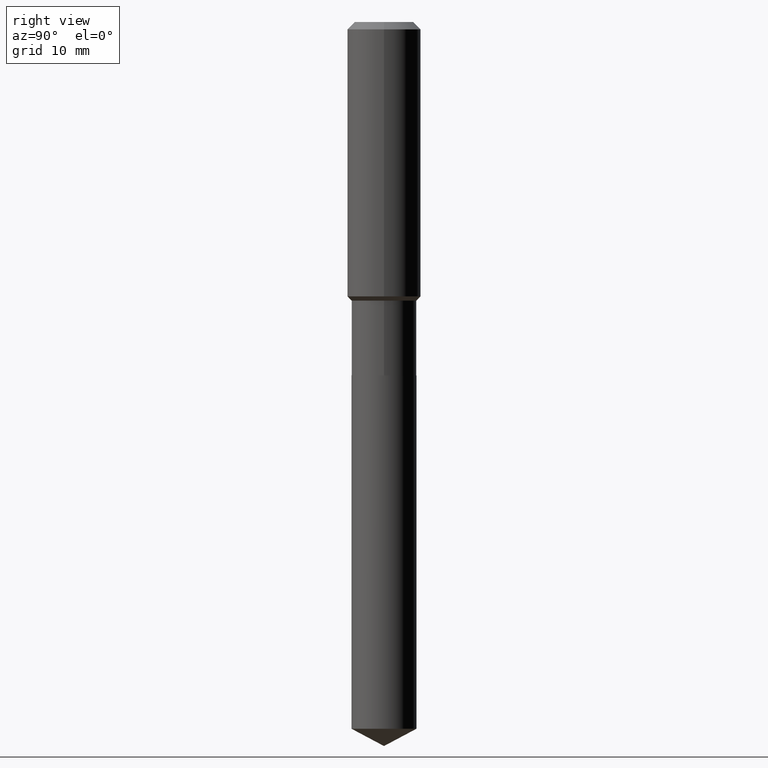
[diagram: clean part render]
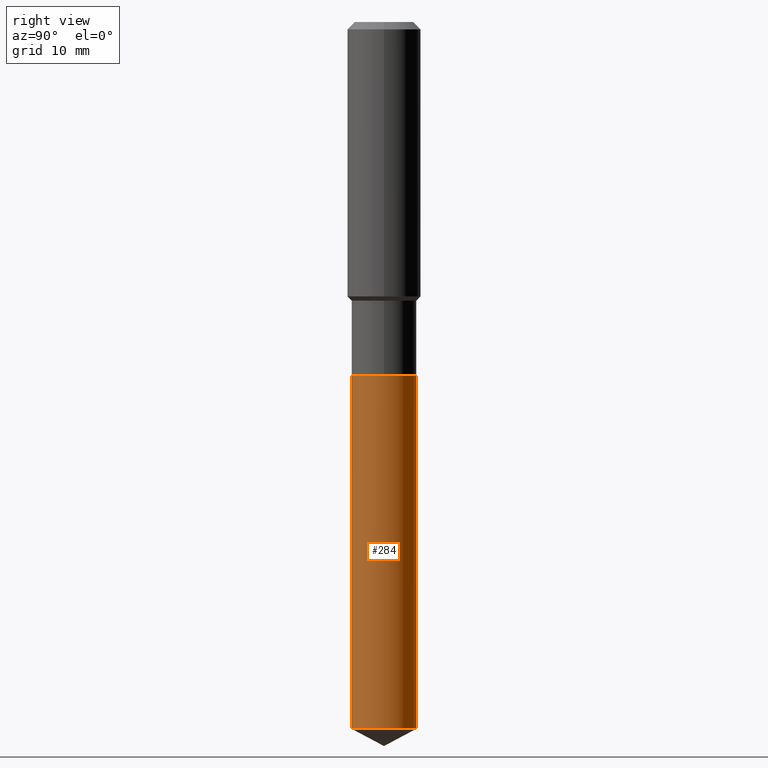
[diagram: same view with one face highlighted and labeled with its STEP entity id]
A machine part, right view. The second image highlights one B-rep face of the part: STEP entity #284.
In plain terms, the highlighted cylindrical surface (edge-blend (fillet) strip) has radius 5.2997 mm, axis along (-0, 0, 1).
Its self-contained STEP definition (entity closure, byte-faithful):
#23 = LINE ( 'NONE', #331, #314 ) ;
#24 = EDGE_CURVE ( 'NONE', #313, #456, #272, .T. ) ;
#25 = CARTESIAN_POINT ( 'NONE',  ( 1.108967334134841419E-28, -1.583293691002807105E-14, -4.534758827083832600 ) ) ;
#28 = CIRCLE ( 'NONE', #102, 0.2086500000000000021 ) ;
#40 = CARTESIAN_POINT ( 'NONE',  ( 5.545589611786032874E-29, -7.917632232094598886E-15, -2.267699999999999605 ) ) ;
#102 = AXIS2_PLACEMENT_3D ( 'NONE', #25, #218, #139 ) ;
#104 = DIRECTION ( 'NONE',  ( -2.445496192392085927E-29, 3.491442120236068010E-15, 1.000000000000000000 ) ) ;
#105 = CARTESIAN_POINT ( 'NONE',  ( 1.482547418163559691E-15, 0.2086499999999842092, -4.534758827083833488 ) ) ;
#139 = DIRECTION ( 'NONE',  ( -6.982962677686265922E-15, -1.000000000000000000, 2.618593811324479633E-15 ) ) ;
#140 = CARTESIAN_POINT ( 'NONE',  ( 5.545589611786032874E-29, -7.917632232094598886E-15, -2.267699999999999605 ) ) ;
#145 = VERTEX_POINT ( 'NONE', #348 ) ;
#151 = ORIENTED_EDGE ( 'NONE', *, *, #333, .T. ) ;
#178 = CARTESIAN_POINT ( 'NONE',  ( -1.456995162699128700E-15, -0.2086500000000158506, -4.534758827083831711 ) ) ;
#181 = FACE_OUTER_BOUND ( 'NONE', #472, .T. ) ;
#182 = ORIENTED_EDGE ( 'NONE', *, *, #403, .F. ) ;
#189 = CARTESIAN_POINT ( 'NONE',  ( -1.456995162699183723E-15, -0.2086500000000079402, -2.267699999999998717 ) ) ;
#218 = DIRECTION ( 'NONE',  ( -2.445496192392085927E-29, 3.491442120236068010E-15, 1.000000000000000000 ) ) ;
#248 = CIRCLE ( 'NONE', #422, 0.2086500000000000021 ) ;
#268 = DIRECTION ( 'NONE',  ( -6.982962677686265922E-15, -1.000000000000000000, 3.927890716986719253E-15 ) ) ;
#271 = EDGE_CURVE ( 'NONE', #313, #347, #28, .T. ) ;
#272 = LINE ( 'NONE', #189, #329 ) ;
#284 = ADVANCED_FACE ( 'NONE', ( #181 ), #335, .T. ) ;
#306 = ORIENTED_EDGE ( 'NONE', *, *, #271, .T. ) ;
#313 = VERTEX_POINT ( 'NONE', #178 ) ;
#314 = VECTOR ( 'NONE', #475, 39.37007874015748143 ) ;
#323 = AXIS2_PLACEMENT_3D ( 'NONE', #140, #104, #478 ) ;
#329 = VECTOR ( 'NONE', #383, 39.37007874015748143 ) ;
#331 = CARTESIAN_POINT ( 'NONE',  ( 1.482547418163504470E-15, 0.2086499999999920918, -2.267700000000000049 ) ) ;
#333 = EDGE_CURVE ( 'NONE', #347, #145, #23, .T. ) ;
#335 = CYLINDRICAL_SURFACE ( 'NONE', #323, 0.2086500000000000021 ) ;
#347 = VERTEX_POINT ( 'NONE', #105 ) ;
#348 = CARTESIAN_POINT ( 'NONE',  ( 1.482547418163559888E-15, 0.2086499999999920363, -2.267700000000000049 ) ) ;
#383 = DIRECTION ( 'NONE',  ( -2.445496192392085647E-29, 3.491442120236068404E-15, 1.000000000000000000 ) ) ;
#403 = EDGE_CURVE ( 'NONE', #456, #145, #248, .T. ) ;
#422 = AXIS2_PLACEMENT_3D ( 'NONE', #40, #448, #268 ) ;
#445 = CARTESIAN_POINT ( 'NONE',  ( -1.456995162699183723E-15, -0.2086500000000079402, -2.267699999999998717 ) ) ;
#448 = DIRECTION ( 'NONE',  ( -2.445496192392085927E-29, 3.491442120236068010E-15, 1.000000000000000000 ) ) ;
#456 = VERTEX_POINT ( 'NONE', #445 ) ;
#472 = EDGE_LOOP ( 'NONE', ( #306, #151, #182, #488 ) ) ;
#475 = DIRECTION ( 'NONE',  ( -2.445496192392085647E-29, 3.491442120236068404E-15, 1.000000000000000000 ) ) ;
#478 = DIRECTION ( 'NONE',  ( -6.982962677686265922E-15, -1.000000000000000000, 3.927890716986719253E-15 ) ) ;
#488 = ORIENTED_EDGE ( 'NONE', *, *, #24, .F. ) ;